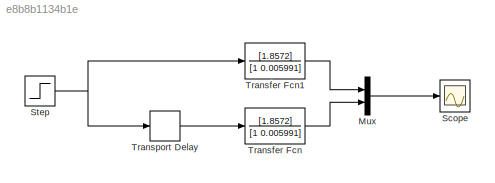
MODEL slx_e8b8b1134b1e
KIND model
BLOCK [Mux] Mux
  DisplayOption = bar
  Inputs = 2
  Ports = [2, 1]
BLOCK [Scope] Scope
  DataFormat = StructureWithTime
  Floating = off
  NumInputPorts = 1
  Ports = [1]
  SampleTime = 0
  ShowLegends = off
BLOCK [Step] Step
  SampleTime = 0
BLOCK [TransferFcn] Transfer Fcn
  Denominator = [1 0.005991]
  Numerator = [1.8572]
BLOCK [TransferFcn] Transfer Fcn1
  Denominator = [1 0.005991]
  Numerator = [1.8572]
BLOCK [TransportDelay] Transport Delay
  DelayTime = 9
  Ports = [1, 1]
LINE Mux:1 -> Scope:1
NET Step:1 -> Transfer Fcn1:1, Transport Delay:1
LINE Transfer Fcn1:1 -> Mux:1
LINE Transfer Fcn:1 -> Mux:2
LINE Transport Delay:1 -> Transfer Fcn:1
note: NET lines group one-source signal fan-out (src -> all destinations, sorted); 1:1 wires keep LINE
